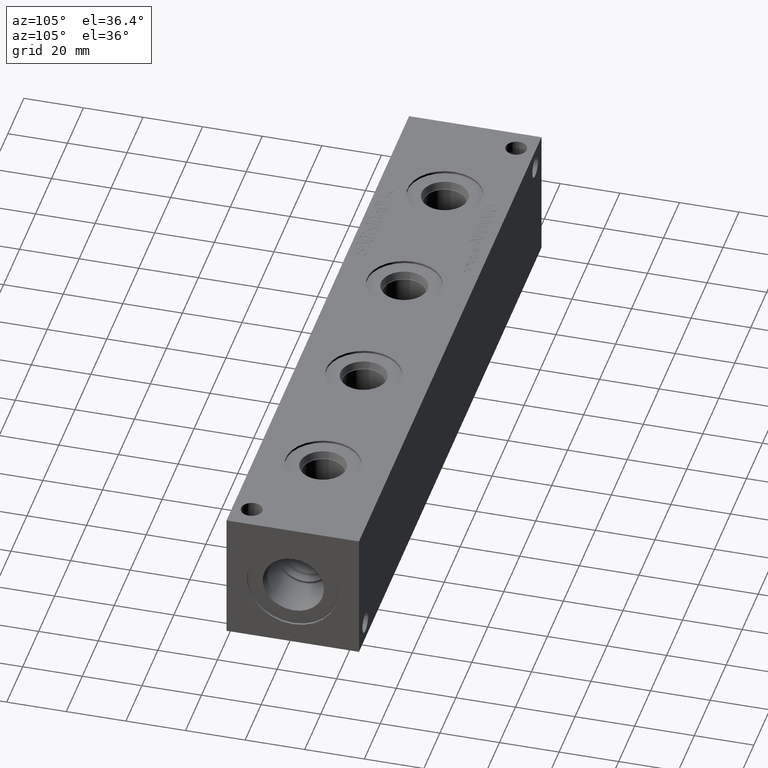
[diagram: clean part render]
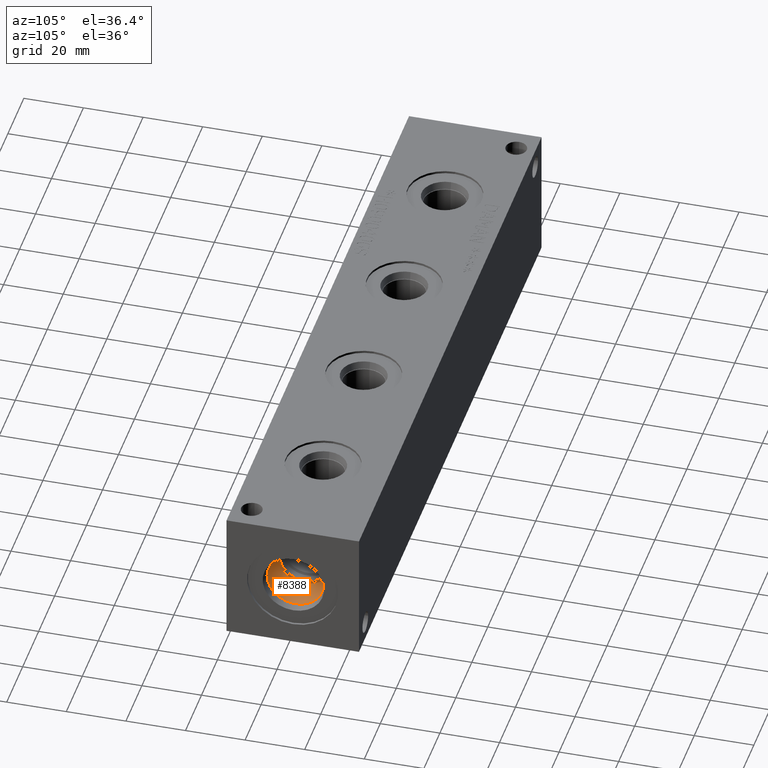
[diagram: same view with one face highlighted and labeled with its STEP entity id]
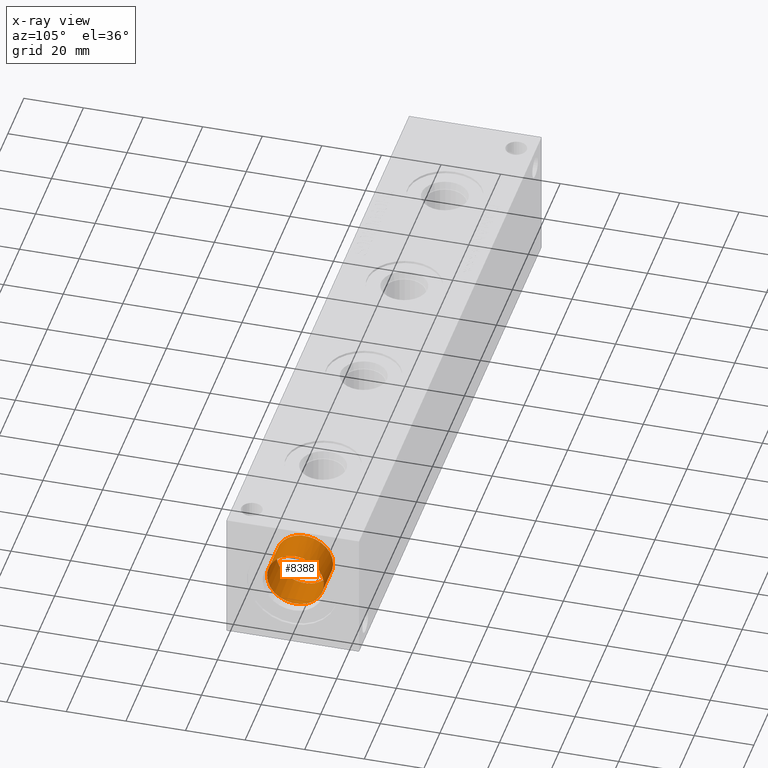
[diagram: x-ray of the same camera — body ghosted, the highlighted face saturated]
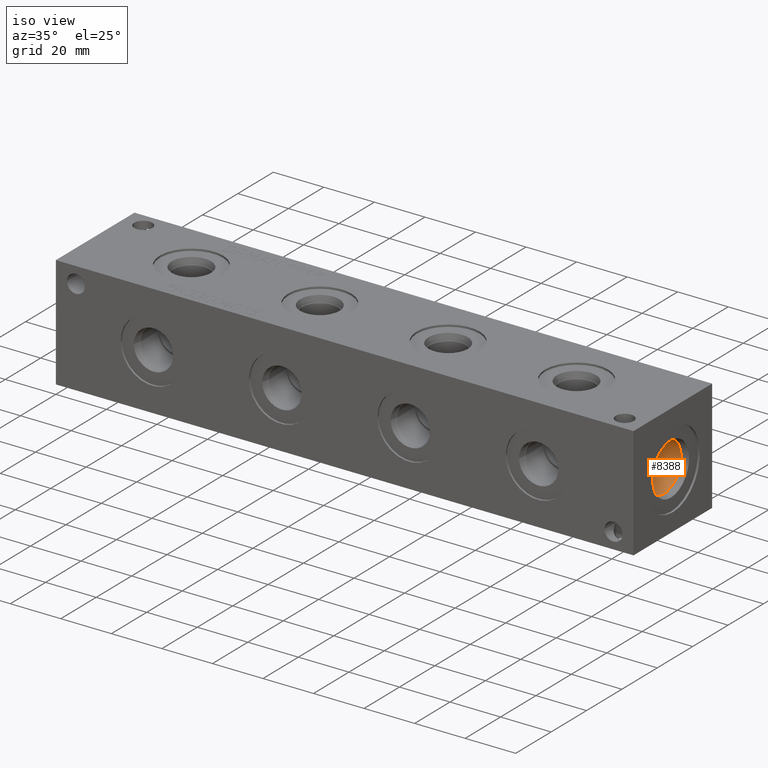
[diagram: same view with one face highlighted and labeled with its STEP entity id]
A machine part, auxiliary view. The second image highlights one B-rep face of the part: STEP entity #8388.
The next image is the same camera in x-ray: the body ghosted, the highlighted face saturated — about 0% of this face is hidden behind the body in this view.
A second angle (iso view) of the same face is appended — the face is thin or edge-on in the first view.
In plain terms, the highlighted cylindrical surface (bore or boss wall) has radius 9.525 mm, axis along (1, 0, 0).
Its self-contained STEP definition (entity closure, byte-faithful):
#122=CYLINDRICAL_SURFACE('',#8913,9.525);
#292=CIRCLE('',#8910,9.525);
#293=CIRCLE('',#8911,9.525);
#295=CIRCLE('',#8914,9.525);
#296=CIRCLE('',#8915,9.525);
#1157=FACE_OUTER_BOUND('',#1647,.T.);
#1647=EDGE_LOOP('',(#7301,#7302,#7303,#7304,#7305,#7306));
#2384=LINE('',#14615,#3105);
#3105=VECTOR('',#10647,9.525);
#3874=VERTEX_POINT('',#14605);
#3875=VERTEX_POINT('',#14606);
#3877=VERTEX_POINT('',#14612);
#3878=VERTEX_POINT('',#14613);
#5031=EDGE_CURVE('',#3874,#3875,#292,.T.);
#5032=EDGE_CURVE('',#3875,#3874,#293,.T.);
#5034=EDGE_CURVE('',#3877,#3878,#295,.T.);
#5035=EDGE_CURVE('',#3877,#3875,#2384,.T.);
#5036=EDGE_CURVE('',#3878,#3877,#296,.T.);
#7301=ORIENTED_EDGE('',*,*,#5034,.F.);
#7302=ORIENTED_EDGE('',*,*,#5035,.T.);
#7303=ORIENTED_EDGE('',*,*,#5031,.F.);
#7304=ORIENTED_EDGE('',*,*,#5032,.F.);
#7305=ORIENTED_EDGE('',*,*,#5035,.F.);
#7306=ORIENTED_EDGE('',*,*,#5036,.F.);
#8388=ADVANCED_FACE('',(#1157),#122,.F.);
#8910=AXIS2_PLACEMENT_3D('',#14607,#10637,#10638);
#8911=AXIS2_PLACEMENT_3D('',#14608,#10639,#10640);
#8913=AXIS2_PLACEMENT_3D('',#14611,#10643,#10644);
#8914=AXIS2_PLACEMENT_3D('',#14614,#10645,#10646);
#8915=AXIS2_PLACEMENT_3D('',#14616,#10648,#10649);
#10637=DIRECTION('center_axis',(1.,0.,0.));
#10638=DIRECTION('ref_axis',(0.,1.,0.));
#10639=DIRECTION('center_axis',(1.,0.,0.));
#10640=DIRECTION('ref_axis',(0.,1.,0.));
#10643=DIRECTION('center_axis',(1.,0.,0.));
#10644=DIRECTION('ref_axis',(0.,1.,0.));
#10645=DIRECTION('center_axis',(-1.,0.,0.));
#10646=DIRECTION('ref_axis',(0.,1.,0.));
#10647=DIRECTION('',(-1.,0.,0.));
#10648=DIRECTION('center_axis',(-1.,0.,0.));
#10649=DIRECTION('ref_axis',(0.,1.,0.));
#14605=CARTESIAN_POINT('',(213.5378,31.75,22.225));
#14606=CARTESIAN_POINT('',(213.5378,12.7,22.225));
#14607=CARTESIAN_POINT('Origin',(213.5378,22.225,22.225));
#14608=CARTESIAN_POINT('Origin',(213.5378,22.225,22.225));
#14611=CARTESIAN_POINT('Origin',(221.0689,22.225,22.225));
#14612=CARTESIAN_POINT('',(225.1964,12.7,22.225));
#14613=CARTESIAN_POINT('',(225.1964,22.225,31.75));
#14614=CARTESIAN_POINT('Origin',(225.1964,22.225,22.225));
#14615=CARTESIAN_POINT('',(221.0689,12.7,22.225));
#14616=CARTESIAN_POINT('Origin',(225.1964,22.225,22.225));